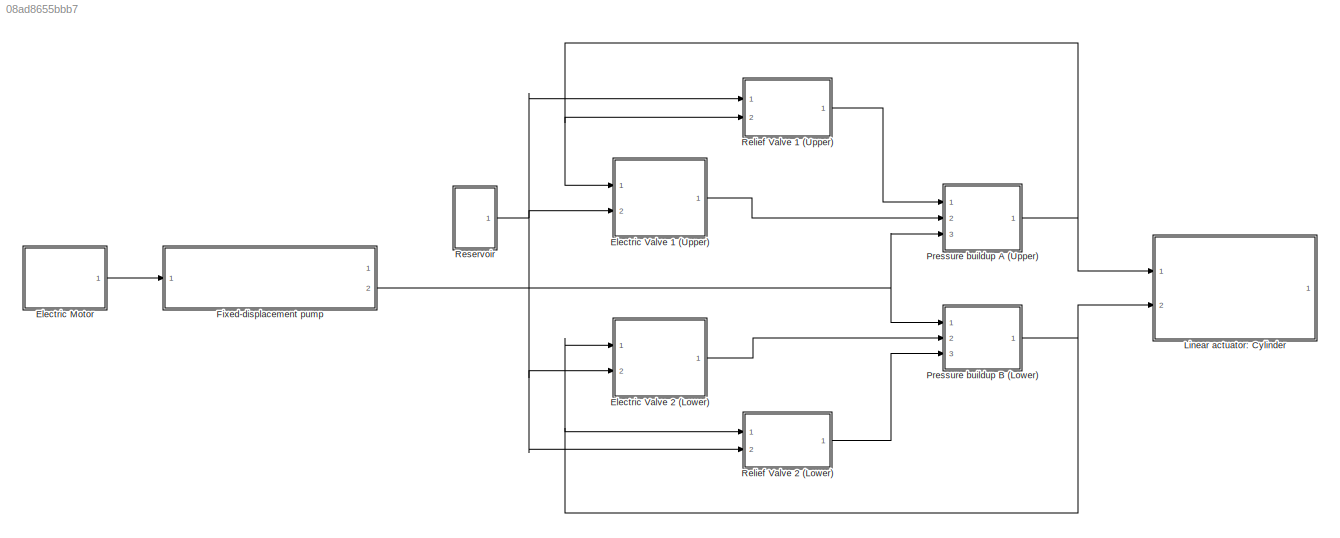
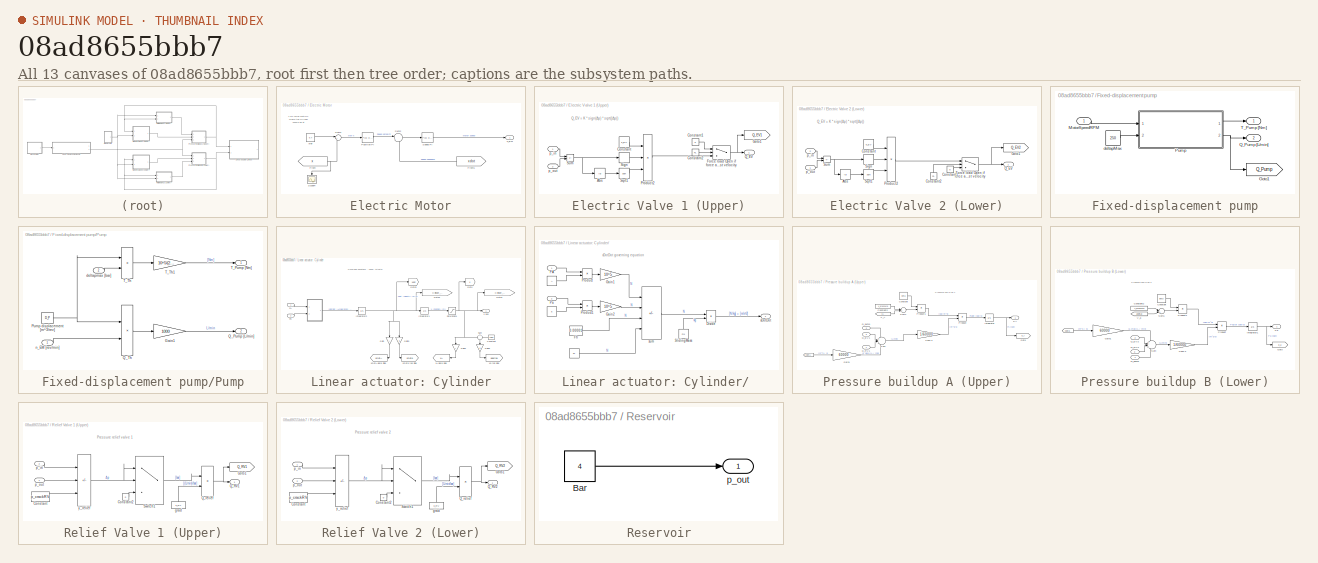
[diagram: thumbnail index - all 13 canvases of the model, root first then tree order]
MODEL slx_08ad8655bbb7
KIND model
CONFIG AbsTol = auto
CONFIG EnableMultiTasking = off
CONFIG FixedStep = auto
CONFIG MaxStep = auto
CONFIG MinStep = auto
CONFIG RelTol = 1e-3
CONFIG SampleTimeConstraint = Unconstrained
CONFIG SolverName = VariableStepAuto
CONFIG StartTime = 0.0
CONFIG StopTime = 10.0
BLOCK [SubSystem] Electric Motor
  Ports = [0, 1]
  RequestExecContextInheritance = off
  TreatAsAtomicUnit = on
BLOCK [From] Electric Motor/From
  GotoTag = x
  TagVisibility = global
BLOCK [From] Electric Motor/From1
  GotoTag = xdot
  NameLocation = top
  TagVisibility = global
BLOCK [Reference] Electric Motor/Position PI  REF=slpidlib/PID Controller
  Ports = [1, 1]
  SourceBlock = slpidlib/PID Controller
  SourceProductBaseCode = SL
  SourceType = PID 1dof
BLOCK [Scope] Electric Motor/Scope4
  Floating = off
  NameLocation = left
  NumInputPorts = 1
  Ports = [1]
  ScopeSpecificationString = Simulink.scopes.TimeScopeBlockCfg('CurrentConfiguration', extmgr.ConfigurationSet(extmgr.Configuration('Core','General UI',true),extmgr.Configuration('Core','Source UI',true),extmgr.Configuration('Sources','WiredSimulink',true,'DataLoggingVariableName','ScopeData5'),extmgr.Configuration('Visuals','Time Domain',true,'SerializedDisplays',{struct('MinYLimReal','-0.08958','MaxYLimReal','0.78773','YLab...<+1370ch>
BLOCK [Reference] Electric Motor/Speed PI  REF=slpidlib/PID Controller
  Ports = [1, 1]
  SourceBlock = slpidlib/PID Controller
  SourceProductBaseCode = SL
  SourceType = PID 1dof
BLOCK [Sum] Electric Motor/Sum1
  Inputs = |+-
  Ports = [2, 1]
BLOCK [Sum] Electric Motor/Sum2
  Inputs = |+-
  Ports = [2, 1]
BLOCK [Outport] Electric Motor/n_EM
BLOCK [Constant] Electric Motor/xref
  Value = 0.7
BLOCK [SubSystem] Electric Valve 1 (Upper)
  Ports = [2, 1]
  RequestExecContextInheritance = off
  TreatAsAtomicUnit = on
BLOCK [Abs] Electric Valve 1 (Upper)/Abs
  SaturateOnIntegerOverflow = off
BLOCK [Constant] Electric Valve 1 (Upper)/Constant
  Value = k_EV
BLOCK [Constant] Electric Valve 1 (Upper)/Constant1
  Value = 0
BLOCK [Constant] Electric Valve 1 (Upper)/Constant2
  Value = FL
BLOCK [Switch] Electric Valve 1 (Upper)/Force load Open if force acts against velocity
  InputSameDT = off
  SaturateOnIntegerOverflow = off
BLOCK [Goto] Electric Valve 1 (Upper)/Goto1
  GotoTag = Q_EV1
  TagVisibility = global
BLOCK [Product] Electric Valve 1 (Upper)/Product2
  Inputs = 3
  Ports = [3, 1]
BLOCK [Outport] Electric Valve 1 (Upper)/Q_EV
BLOCK [Signum] Electric Valve 1 (Upper)/Sign
BLOCK [Sqrt] Electric Valve 1 (Upper)/Sqrt1
BLOCK [Sum] Electric Valve 1 (Upper)/Sum
  IconShape = rectangular
  Inputs = +|-
  Ports = [2, 1]
BLOCK [Inport] Electric Valve 1 (Upper)/p_in
BLOCK [Inport] Electric Valve 1 (Upper)/p_out
  Port = 2
BLOCK [SubSystem] Electric Valve 2 (Lower)
  Ports = [2, 1]
  RequestExecContextInheritance = off
  TreatAsAtomicUnit = on
BLOCK [Abs] Electric Valve 2 (Lower)/Abs
  SaturateOnIntegerOverflow = off
BLOCK [Constant] Electric Valve 2 (Lower)/Constant
  Value = k_EV
BLOCK [Constant] Electric Valve 2 (Lower)/Constant1
  Value = 0
BLOCK [Constant] Electric Valve 2 (Lower)/Constant2
  NameLocation = right
  Value = FL
BLOCK [Switch] Electric Valve 2 (Lower)/Force load Open if force acts against velocity
  InputSameDT = off
  SaturateOnIntegerOverflow = off
BLOCK [Goto] Electric Valve 2 (Lower)/Goto1
  GotoTag = Q_EV2
  TagVisibility = global
BLOCK [Product] Electric Valve 2 (Lower)/Product2
  Inputs = 3
  Ports = [3, 1]
BLOCK [Outport] Electric Valve 2 (Lower)/Q_EV
BLOCK [Signum] Electric Valve 2 (Lower)/Sign
BLOCK [Sqrt] Electric Valve 2 (Lower)/Sqrt1
BLOCK [Sum] Electric Valve 2 (Lower)/Sum
  IconShape = rectangular
  Inputs = +|-
  Ports = [2, 1]
BLOCK [Inport] Electric Valve 2 (Lower)/p_in
  Port = 2
BLOCK [Inport] Electric Valve 2 (Lower)/p_out
BLOCK [SubSystem] Fixed-displacement pump
  Ports = [1, 2]
  RequestExecContextInheritance = off
  TreatAsAtomicUnit = on
BLOCK [Goto] Fixed-displacement pump/Goto1
  GotoTag = Q_Pump
  TagVisibility = global
BLOCK [Inport] Fixed-displacement pump/MotorSpeedRPM
BLOCK [SubSystem] Fixed-displacement pump/Pump
  Ports = [2, 2]
  RequestExecContextInheritance = off
  TreatAsAtomicUnit = on
BLOCK [Gain] Fixed-displacement pump/Pump/Gain1
  Gain = 1000
BLOCK [Constant] Fixed-displacement pump/Pump/Pump displacement [m^3//rev]
  Value = D_P
BLOCK [Outport] Fixed-displacement pump/Pump/Q_Pump [L//min]
  Port = 2
  VectorParamsAs1DForOutWhenUnconnected = off
BLOCK [Product] Fixed-displacement pump/Pump/Q_Th
  Ports = [2, 1]
  RndMeth = Zero
BLOCK [Outport] Fixed-displacement pump/Pump/T_Pump [Nm]
  VectorParamsAs1DForOutWhenUnconnected = off
BLOCK [Product] Fixed-displacement pump/Pump/T_Th
  Ports = [2, 1]
  RndMeth = Zero
BLOCK [Gain] Fixed-displacement pump/Pump/T_Th1
  Gain = 10^5/(2*pi)
BLOCK [Inport] Fixed-displacement pump/Pump/deltapmax [bar]
  Port = 2
BLOCK [Inport] Fixed-displacement pump/Pump/n_EM [rev//min]
BLOCK [Outport] Fixed-displacement pump/Q_Pump [L//min]
  Port = 2
BLOCK [Outport] Fixed-displacement pump/T_Pump [Nm]
BLOCK [Constant] Fixed-displacement pump/deltapMax
  Value = 250
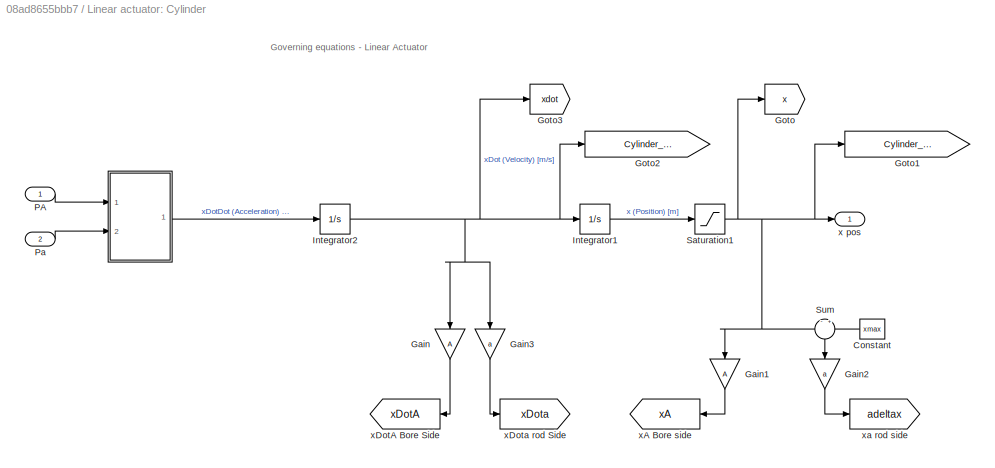
BLOCK [SubSystem] Linear actuator: Cylinder
  Ports = [2, 1]
  RequestExecContextInheritance = off
  TreatAsAtomicUnit = on
BLOCK [SubSystem] Linear actuator: Cylinder/ 
  Ports = [2, 1]
  RequestExecContextInheritance = off
  TreatAsAtomicUnit = on
BLOCK [Constant] Linear actuator: Cylinder/ /   
  Value = A
BLOCK [Constant] Linear actuator: Cylinder/ /    
  Value = a
BLOCK [Constant] Linear actuator: Cylinder/ /      
  Value = FL
BLOCK [Product] Linear actuator: Cylinder/ /Divide 
  Inputs = */
  Ports = [2, 1]
BLOCK [Constant] Linear actuator: Cylinder/ /Ffr
  Value = 0.00001
BLOCK [Gain] Linear actuator: Cylinder/ /Gain1
  Gain = 10^5
BLOCK [Gain] Linear actuator: Cylinder/ /Gain2
  Gain = 10^5
BLOCK [Inport] Linear actuator: Cylinder/ /PA
BLOCK [Inport] Linear actuator: Cylinder/ /Pa
  Port = 2
BLOCK [Product] Linear actuator: Cylinder/ /Product
  Ports = [2, 1]
BLOCK [Product] Linear actuator: Cylinder/ /Product1
  Ports = [2, 1]
BLOCK [Constant] Linear actuator: Cylinder/ /SlidingMass
  Value = m1
BLOCK [Sum] Linear actuator: Cylinder/ /sum
  IconShape = rectangular
  Inputs = +---
  Ports = [4, 1]
BLOCK [Outport] Linear actuator: Cylinder/ /xDotDot
BLOCK [Constant] Linear actuator: Cylinder/Constant
  NameLocation = top
  Value = xmax
BLOCK [Gain] Linear actuator: Cylinder/Gain
  Gain = A
  NameLocation = left
BLOCK [Gain] Linear actuator: Cylinder/Gain1
  Gain = A
  NameLocation = left
BLOCK [Gain] Linear actuator: Cylinder/Gain2
  Gain = a
  NameLocation = left
BLOCK [Gain] Linear actuator: Cylinder/Gain3
  Gain = a
  NameLocation = left
BLOCK [Goto] Linear actuator: Cylinder/Goto
  GotoTag = x
  TagVisibility = global
BLOCK [Goto] Linear actuator: Cylinder/Goto1
  GotoTag = Cylinder_Position
  TagVisibility = global
BLOCK [Goto] Linear actuator: Cylinder/Goto2
  GotoTag = Cylinder_Velocity
  TagVisibility = global
BLOCK [Goto] Linear actuator: Cylinder/Goto3
  GotoTag = xdot
  TagVisibility = global
BLOCK [Integrator] Linear actuator: Cylinder/Integrator1
  Ports = [1, 1]
BLOCK [Integrator] Linear actuator: Cylinder/Integrator2
  Ports = [1, 1]
BLOCK [Inport] Linear actuator: Cylinder/PA
  NameLocation = top
BLOCK [Inport] Linear actuator: Cylinder/Pa
  Port = 2
BLOCK [Saturate] Linear actuator: Cylinder/Saturation1
  LowerLimit = -0.7
  UpperLimit = 0.7
BLOCK [Sum] Linear actuator: Cylinder/Sum
  Inputs = -|+
  NameLocation = left
  Ports = [2, 1]
BLOCK [Outport] Linear actuator: Cylinder/x pos
BLOCK [Goto] Linear actuator: Cylinder/xA Bore side
  GotoTag = xA
  TagVisibility = global
BLOCK [Goto] Linear actuator: Cylinder/xDotA Bore Side
  GotoTag = xDotA
  TagVisibility = global
BLOCK [Goto] Linear actuator: Cylinder/xDota rod Side
  GotoTag = xDota
  TagVisibility = global
BLOCK [Goto] Linear actuator: Cylinder/xa rod side
  GotoTag = adeltax
  TagVisibility = global
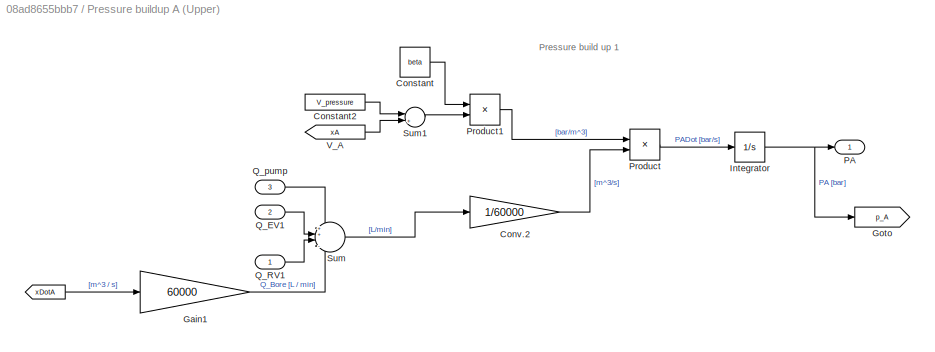
BLOCK [SubSystem] Pressure buildup A (Upper)
  Ports = [3, 1]
  RequestExecContextInheritance = off
  TreatAsAtomicUnit = on
BLOCK [From] Pressure buildup A (Upper)/  
  GotoTag = xDotA
  NameLocation = left
  TagVisibility = global
BLOCK [Constant] Pressure buildup A (Upper)/Constant
  Value = beta
BLOCK [Constant] Pressure buildup A (Upper)/Constant2
  Value = V_pressure
BLOCK [Gain] Pressure buildup A (Upper)/Conv.2
  Gain = 1/60000
  NameLocation = top
BLOCK [Gain] Pressure buildup A (Upper)/Gain1
  Gain = 60000
BLOCK [Goto] Pressure buildup A (Upper)/Goto
  GotoTag = p_A
  TagVisibility = global
BLOCK [Integrator] Pressure buildup A (Upper)/Integrator
  Ports = [1, 1]
BLOCK [Outport] Pressure buildup A (Upper)/PA
BLOCK [Product] Pressure buildup A (Upper)/Product
  Ports = [2, 1]
BLOCK [Product] Pressure buildup A (Upper)/Product1
  Inputs = */
  Ports = [2, 1]
BLOCK [Inport] Pressure buildup A (Upper)/Q_EV1
  NameLocation = left
  Port = 2
BLOCK [Inport] Pressure buildup A (Upper)/Q_RV1
  NameLocation = left
BLOCK [Inport] Pressure buildup A (Upper)/Q_pump
  NameLocation = left
  Port = 3
BLOCK [Sum] Pressure buildup A (Upper)/Sum
  Inputs = ++|--
  Ports = [4, 1]
BLOCK [Sum] Pressure buildup A (Upper)/Sum1
  Inputs = |++|
  Ports = [2, 1]
BLOCK [From] Pressure buildup A (Upper)/V_A
  GotoTag = xA
  TagVisibility = global
BLOCK [SubSystem] Pressure buildup B (Lower)
  Ports = [3, 1]
  RequestExecContextInheritance = off
  TreatAsAtomicUnit = on
BLOCK [From] Pressure buildup B (Lower)/  
  GotoTag = xDota
  NameLocation = left
  TagVisibility = global
BLOCK [Constant] Pressure buildup B (Lower)/Constant
  Value = beta
BLOCK [Constant] Pressure buildup B (Lower)/Constant2
  Value = V_pressure
BLOCK [Gain] Pressure buildup B (Lower)/Conv.2
  Gain = 1/60000
  NameLocation = top
BLOCK [Gain] Pressure buildup B (Lower)/Gain1
  Gain = 60000
BLOCK [Goto] Pressure buildup B (Lower)/Goto
  GotoTag = p_a
  TagVisibility = global
BLOCK [Integrator] Pressure buildup B (Lower)/Integrator1
  Ports = [1, 1]
BLOCK [Outport] Pressure buildup B (Lower)/Pa
BLOCK [Product] Pressure buildup B (Lower)/Product
  Ports = [2, 1]
BLOCK [Product] Pressure buildup B (Lower)/Product1
  Inputs = */
  Ports = [2, 1]
BLOCK [Inport] Pressure buildup B (Lower)/Q_EV2
  NameLocation = left
  Port = 2
BLOCK [Inport] Pressure buildup B (Lower)/Q_RV2
  NameLocation = left
  Port = 3
BLOCK [Inport] Pressure buildup B (Lower)/Q_pump
  NameLocation = left
BLOCK [Sum] Pressure buildup B (Lower)/Sum
  Inputs = ++|--
  Ports = [4, 1]
BLOCK [Sum] Pressure buildup B (Lower)/Sum1
  Inputs = |++|
  Ports = [2, 1]
BLOCK [From] Pressure buildup B (Lower)/V_a
  GotoTag = adeltax
  TagVisibility = global
BLOCK [SubSystem] Relief Valve 1 (Upper)
  Ports = [2, 1]
  RequestExecContextInheritance = off
  TreatAsAtomicUnit = on
BLOCK [Constant] Relief Valve 1 (Upper)/Constant
  Value = p_crackRV
BLOCK [Constant] Relief Valve 1 (Upper)/Constant2
  Value = 0
BLOCK [Goto] Relief Valve 1 (Upper)/Goto1
  GotoTag = Q_RV1
  TagVisibility = global
BLOCK [Outport] Relief Valve 1 (Upper)/Q_RV1
  VectorParamsAs1DForOutWhenUnconnected = off
BLOCK [Product] Relief Valve 1 (Upper)/Q_relief
  Ports = [2, 1]
  RndMeth = Zero
BLOCK [Switch] Relief Valve 1 (Upper)/Switch1
  InputSameDT = off
  SaturateOnIntegerOverflow = off
BLOCK [Constant] Relief Valve 1 (Upper)/grad
  NameLocation = right
  Value = k_RV
BLOCK [Inport] Relief Valve 1 (Upper)/p_in
  Port = 2
BLOCK [Inport] Relief Valve 1 (Upper)/p_out
BLOCK [Sum] Relief Valve 1 (Upper)/y_relief
  IconShape = rectangular
  Inputs = +--
  Ports = [3, 1]
BLOCK [SubSystem] Relief Valve 2 (Lower)
  Ports = [2, 1]
  RequestExecContextInheritance = off
  TreatAsAtomicUnit = on
BLOCK [Constant] Relief Valve 2 (Lower)/Constant
  Value = p_crackRV
BLOCK [Constant] Relief Valve 2 (Lower)/Constant2
  Value = 0
BLOCK [Goto] Relief Valve 2 (Lower)/Goto1
  GotoTag = Q_RV2
  TagVisibility = global
BLOCK [Outport] Relief Valve 2 (Lower)/Q_RV2
  VectorParamsAs1DForOutWhenUnconnected = off
BLOCK [Product] Relief Valve 2 (Lower)/Q_relief
  Ports = [2, 1]
  RndMeth = Zero
BLOCK [Switch] Relief Valve 2 (Lower)/Switch1
  InputSameDT = off
  SaturateOnIntegerOverflow = off
BLOCK [Constant] Relief Valve 2 (Lower)/grad
  NameLocation = right
  Value = k_RV
BLOCK [Inport] Relief Valve 2 (Lower)/p_in
BLOCK [Inport] Relief Valve 2 (Lower)/p_out
  Port = 2
BLOCK [Sum] Relief Valve 2 (Lower)/y_relief
  IconShape = rectangular
  Inputs = +--
  Ports = [3, 1]
BLOCK [SubSystem] Reservoir
  Ports = [0, 1]
  RequestExecContextInheritance = off
  TreatAsAtomicUnit = on
BLOCK [Constant] Reservoir/Bar
  Value = 4
BLOCK [Outport] Reservoir/p_out
ANNOTATION Electric Motor: This value controls where the cylinder should be at
ANNOTATION Electric Valve 1 (Upper): Q_EV = K * sign( Δp) * sqrt(|Δp|)
ANNOTATION Electric Valve 2 (Lower): Q_EV = K * sign( Δp) * sqrt(|Δp|)
ANNOTATION Linear actuator: Cylinder: Governing equations - Linear Actuator
ANNOTATION Linear actuator: Cylinder/ : xDotDot governing equation
ANNOTATION Pressure buildup A (Upper): Pressure build up 1
ANNOTATION Pressure buildup B (Lower): Pressure build up 2
ANNOTATION Relief Valve 1 (Upper): Pressure relief valve 1
ANNOTATION Relief Valve 2 (Lower): Pressure relief valve 2
LINE Electric Motor/From1:1 -> Electric Motor/Sum2:2
NET Electric Motor/From:1 -> Electric Motor/Scope4:1, Electric Motor/Sum1:2
LINE Electric Motor/Position PI:1 -> Electric Motor/Sum2:1
LINE Electric Motor/Speed PI:1 -> Electric Motor/n_EM:1
LINE Electric Motor/Sum1:1 -> Electric Motor/Position PI:1
LINE Electric Motor/Sum2:1 -> Electric Motor/Speed PI:1
LINE Electric Motor/xref:1 -> Electric Motor/Sum1:1
LINE Electric Motor:1 -> Fixed-displacement pump:1
LINE Electric Valve 1 (Upper)/Abs:1 -> Electric Valve 1 (Upper)/Sqrt1:1
LINE Electric Valve 1 (Upper)/Constant1:1 -> Electric Valve 1 (Upper)/Force load Open if force acts against velocity:1
LINE Electric Valve 1 (Upper)/Constant2:1 -> Electric Valve 1 (Upper)/Force load Open if force acts against velocity:2
LINE Electric Valve 1 (Upper)/Constant:1 -> Electric Valve 1 (Upper)/Product2:1
NET Electric Valve 1 (Upper)/Force load Open if force acts against velocity:1 -> Electric Valve 1 (Upper)/Goto1:1, Electric Valve 1 (Upper)/Q_EV:1
LINE Electric Valve 1 (Upper)/Product2:1 -> Electric Valve 1 (Upper)/Force load Open if force acts against velocity:3
LINE Electric Valve 1 (Upper)/Sign:1 -> Electric Valve 1 (Upper)/Product2:2
LINE Electric Valve 1 (Upper)/Sqrt1:1 -> Electric Valve 1 (Upper)/Product2:3
NET Electric Valve 1 (Upper)/Sum:1 -> Electric Valve 1 (Upper)/Abs:1, Electric Valve 1 (Upper)/Sign:1
LINE Electric Valve 1 (Upper)/p_in:1 -> Electric Valve 1 (Upper)/Sum:1
LINE Electric Valve 1 (Upper)/p_out:1 -> Electric Valve 1 (Upper)/Sum:2
LINE Electric Valve 1 (Upper):1 -> Pressure buildup A (Upper):2
LINE Electric Valve 2 (Lower)/Abs:1 -> Electric Valve 2 (Lower)/Sqrt1:1
LINE Electric Valve 2 (Lower)/Constant1:1 -> Electric Valve 2 (Lower)/Force load Open if force acts against velocity:3
LINE Electric Valve 2 (Lower)/Constant2:1 -> Electric Valve 2 (Lower)/Force load Open if force acts against velocity:2
LINE Electric Valve 2 (Lower)/Constant:1 -> Electric Valve 2 (Lower)/Product2:1
NET Electric Valve 2 (Lower)/Force load Open if force acts against velocity:1 -> Electric Valve 2 (Lower)/Goto1:1, Electric Valve 2 (Lower)/Q_EV:1
LINE Electric Valve 2 (Lower)/Product2:1 -> Electric Valve 2 (Lower)/Force load Open if force acts against velocity:1
LINE Electric Valve 2 (Lower)/Sign:1 -> Electric Valve 2 (Lower)/Product2:2
LINE Electric Valve 2 (Lower)/Sqrt1:1 -> Electric Valve 2 (Lower)/Product2:3
NET Electric Valve 2 (Lower)/Sum:1 -> Electric Valve 2 (Lower)/Abs:1, Electric Valve 2 (Lower)/Sign:1
LINE Electric Valve 2 (Lower)/p_in:1 -> Electric Valve 2 (Lower)/Sum:1
LINE Electric Valve 2 (Lower)/p_out:1 -> Electric Valve 2 (Lower)/Sum:2
LINE Electric Valve 2 (Lower):1 -> Pressure buildup B (Lower):2
LINE Fixed-displacement pump/MotorSpeedRPM:1 -> Fixed-displacement pump/Pump:1
LINE Fixed-displacement pump/Pump/Gain1:1 -> Fixed-displacement pump/Pump/Q_Pump [L//min]:1
NET Fixed-displacement pump/Pump/Pump displacement [m^3//rev]:1 -> Fixed-displacement pump/Pump/Q_Th:1, Fixed-displacement pump/Pump/T_Th:1
LINE Fixed-displacement pump/Pump/Q_Th:1 -> Fixed-displacement pump/Pump/Gain1:1
LINE Fixed-displacement pump/Pump/T_Th1:1 -> Fixed-displacement pump/Pump/T_Pump [Nm]:1
LINE Fixed-displacement pump/Pump/T_Th:1 -> Fixed-displacement pump/Pump/T_Th1:1
LINE Fixed-displacement pump/Pump/deltapmax [bar]:1 -> Fixed-displacement pump/Pump/T_Th:2
LINE Fixed-displacement pump/Pump/n_EM [rev//min]:1 -> Fixed-displacement pump/Pump/Q_Th:2
LINE Fixed-displacement pump/Pump:1 -> Fixed-displacement pump/T_Pump [Nm]:1
NET Fixed-displacement pump/Pump:2 -> Fixed-displacement pump/Goto1:1, Fixed-displacement pump/Q_Pump [L//min]:1
LINE Fixed-displacement pump/deltapMax:1 -> Fixed-displacement pump/Pump:2
NET Fixed-displacement pump:2 -> Pressure buildup A (Upper):3, Pressure buildup B (Lower):1
LINE Linear actuator: Cylinder/ /      :1 -> Linear actuator: Cylinder/ /sum:4
LINE Linear actuator: Cylinder/ /    :1 -> Linear actuator: Cylinder/ /Product1:2
LINE Linear actuator: Cylinder/ /   :1 -> Linear actuator: Cylinder/ /Product:2
LINE Linear actuator: Cylinder/ /Divide :1 -> Linear actuator: Cylinder/ /xDotDot:1
LINE Linear actuator: Cylinder/ /Ffr:1 -> Linear actuator: Cylinder/ /sum:3
LINE Linear actuator: Cylinder/ /Gain1:1 -> Linear actuator: Cylinder/ /sum:1
LINE Linear actuator: Cylinder/ /Gain2:1 -> Linear actuator: Cylinder/ /sum:2
LINE Linear actuator: Cylinder/ /PA:1 -> Linear actuator: Cylinder/ /Product:1
LINE Linear actuator: Cylinder/ /Pa:1 -> Linear actuator: Cylinder/ /Product1:1
LINE Linear actuator: Cylinder/ /Product1:1 -> Linear actuator: Cylinder/ /Gain2:1
LINE Linear actuator: Cylinder/ /Product:1 -> Linear actuator: Cylinder/ /Gain1:1
LINE Linear actuator: Cylinder/ /SlidingMass:1 -> Linear actuator: Cylinder/ /Divide :2
LINE Linear actuator: Cylinder/ /sum:1 -> Linear actuator: Cylinder/ /Divide :1
LINE Linear actuator: Cylinder/ :1 -> Linear actuator: Cylinder/Integrator2:1
LINE Linear actuator: Cylinder/Constant:1 -> Linear actuator: Cylinder/Sum:2
LINE Linear actuator: Cylinder/Gain1:1 -> Linear actuator: Cylinder/xA Bore side:1
LINE Linear actuator: Cylinder/Gain2:1 -> Linear actuator: Cylinder/xa rod side:1
LINE Linear actuator: Cylinder/Gain3:1 -> Linear actuator: Cylinder/xDota rod Side:1
LINE Linear actuator: Cylinder/Gain:1 -> Linear actuator: Cylinder/xDotA Bore Side:1
LINE Linear actuator: Cylinder/Integrator1:1 -> Linear actuator: Cylinder/Saturation1:1
NET Linear actuator: Cylinder/Integrator2:1 -> Linear actuator: Cylinder/Gain3:1, Linear actuator: Cylinder/Gain:1, Linear actuator: Cylinder/Goto2:1, Linear actuator: Cylinder/Goto3:1, Linear actuator: Cylinder/Integrator1:1
LINE Linear actuator: Cylinder/PA:1 -> Linear actuator: Cylinder/ :1
LINE Linear actuator: Cylinder/Pa:1 -> Linear actuator: Cylinder/ :2
NET Linear actuator: Cylinder/Saturation1:1 -> Linear actuator: Cylinder/Gain1:1, Linear actuator: Cylinder/Goto1:1, Linear actuator: Cylinder/Goto:1, Linear actuator: Cylinder/Sum:1, Linear actuator: Cylinder/x pos:1
LINE Linear actuator: Cylinder/Sum:1 -> Linear actuator: Cylinder/Gain2:1
LINE Pressure buildup A (Upper)/  :1 -> Pressure buildup A (Upper)/Gain1:1
LINE Pressure buildup A (Upper)/Constant2:1 -> Pressure buildup A (Upper)/Sum1:1
LINE Pressure buildup A (Upper)/Constant:1 -> Pressure buildup A (Upper)/Product1:1
LINE Pressure buildup A (Upper)/Conv.2:1 -> Pressure buildup A (Upper)/Product:2
LINE Pressure buildup A (Upper)/Gain1:1 -> Pressure buildup A (Upper)/Sum:4
NET Pressure buildup A (Upper)/Integrator:1 -> Pressure buildup A (Upper)/Goto:1, Pressure buildup A (Upper)/PA:1
LINE Pressure buildup A (Upper)/Product1:1 -> Pressure buildup A (Upper)/Product:1
LINE Pressure buildup A (Upper)/Product:1 -> Pressure buildup A (Upper)/Integrator:1
LINE Pressure buildup A (Upper)/Q_EV1:1 -> Pressure buildup A (Upper)/Sum:2
LINE Pressure buildup A (Upper)/Q_RV1:1 -> Pressure buildup A (Upper)/Sum:3
LINE Pressure buildup A (Upper)/Q_pump:1 -> Pressure buildup A (Upper)/Sum:1
LINE Pressure buildup A (Upper)/Sum1:1 -> Pressure buildup A (Upper)/Product1:2
LINE Pressure buildup A (Upper)/Sum:1 -> Pressure buildup A (Upper)/Conv.2:1
LINE Pressure buildup A (Upper)/V_A:1 -> Pressure buildup A (Upper)/Sum1:2
NET Pressure buildup A (Upper):1 -> Electric Valve 1 (Upper):1, Linear actuator: Cylinder:1, Relief Valve 1 (Upper):2
LINE Pressure buildup B (Lower)/  :1 -> Pressure buildup B (Lower)/Gain1:1
LINE Pressure buildup B (Lower)/Constant2:1 -> Pressure buildup B (Lower)/Sum1:1
LINE Pressure buildup B (Lower)/Constant:1 -> Pressure buildup B (Lower)/Product1:1
LINE Pressure buildup B (Lower)/Conv.2:1 -> Pressure buildup B (Lower)/Product:2
LINE Pressure buildup B (Lower)/Gain1:1 -> Pressure buildup B (Lower)/Sum:1
NET Pressure buildup B (Lower)/Integrator1:1 -> Pressure buildup B (Lower)/Goto:1, Pressure buildup B (Lower)/Pa:1
LINE Pressure buildup B (Lower)/Product1:1 -> Pressure buildup B (Lower)/Product:1
LINE Pressure buildup B (Lower)/Product:1 -> Pressure buildup B (Lower)/Integrator1:1
LINE Pressure buildup B (Lower)/Q_EV2:1 -> Pressure buildup B (Lower)/Sum:2
LINE Pressure buildup B (Lower)/Q_RV2:1 -> Pressure buildup B (Lower)/Sum:3
LINE Pressure buildup B (Lower)/Q_pump:1 -> Pressure buildup B (Lower)/Sum:4
LINE Pressure buildup B (Lower)/Sum1:1 -> Pressure buildup B (Lower)/Product1:2
LINE Pressure buildup B (Lower)/Sum:1 -> Pressure buildup B (Lower)/Conv.2:1
LINE Pressure buildup B (Lower)/V_a:1 -> Pressure buildup B (Lower)/Sum1:2
NET Pressure buildup B (Lower):1 -> Electric Valve 2 (Lower):1, Linear actuator: Cylinder:2, Relief Valve 2 (Lower):1
LINE Relief Valve 1 (Upper)/Constant2:1 -> Relief Valve 1 (Upper)/Switch1:3
LINE Relief Valve 1 (Upper)/Constant:1 -> Relief Valve 1 (Upper)/y_relief:3
NET Relief Valve 1 (Upper)/Q_relief:1 -> Relief Valve 1 (Upper)/Goto1:1, Relief Valve 1 (Upper)/Q_RV1:1
LINE Relief Valve 1 (Upper)/Switch1:1 -> Relief Valve 1 (Upper)/Q_relief:1
LINE Relief Valve 1 (Upper)/grad:1 -> Relief Valve 1 (Upper)/Q_relief:2
LINE Relief Valve 1 (Upper)/p_in:1 -> Relief Valve 1 (Upper)/y_relief:1
LINE Relief Valve 1 (Upper)/p_out:1 -> Relief Valve 1 (Upper)/y_relief:2
NET Relief Valve 1 (Upper)/y_relief:1 -> Relief Valve 1 (Upper)/Switch1:1, Relief Valve 1 (Upper)/Switch1:2
LINE Relief Valve 1 (Upper):1 -> Pressure buildup A (Upper):1
LINE Relief Valve 2 (Lower)/Constant2:1 -> Relief Valve 2 (Lower)/Switch1:3
LINE Relief Valve 2 (Lower)/Constant:1 -> Relief Valve 2 (Lower)/y_relief:3
NET Relief Valve 2 (Lower)/Q_relief:1 -> Relief Valve 2 (Lower)/Goto1:1, Relief Valve 2 (Lower)/Q_RV2:1
LINE Relief Valve 2 (Lower)/Switch1:1 -> Relief Valve 2 (Lower)/Q_relief:1
LINE Relief Valve 2 (Lower)/grad:1 -> Relief Valve 2 (Lower)/Q_relief:2
LINE Relief Valve 2 (Lower)/p_in:1 -> Relief Valve 2 (Lower)/y_relief:1
LINE Relief Valve 2 (Lower)/p_out:1 -> Relief Valve 2 (Lower)/y_relief:2
NET Relief Valve 2 (Lower)/y_relief:1 -> Relief Valve 2 (Lower)/Switch1:1, Relief Valve 2 (Lower)/Switch1:2
LINE Relief Valve 2 (Lower):1 -> Pressure buildup B (Lower):3
LINE Reservoir/Bar:1 -> Reservoir/p_out:1
NET Reservoir:1 -> Electric Valve 1 (Upper):2, Electric Valve 2 (Lower):2, Relief Valve 1 (Upper):1, Relief Valve 2 (Lower):2
note: NET lines group one-source signal fan-out (src -> all destinations, sorted); 1:1 wires keep LINE
